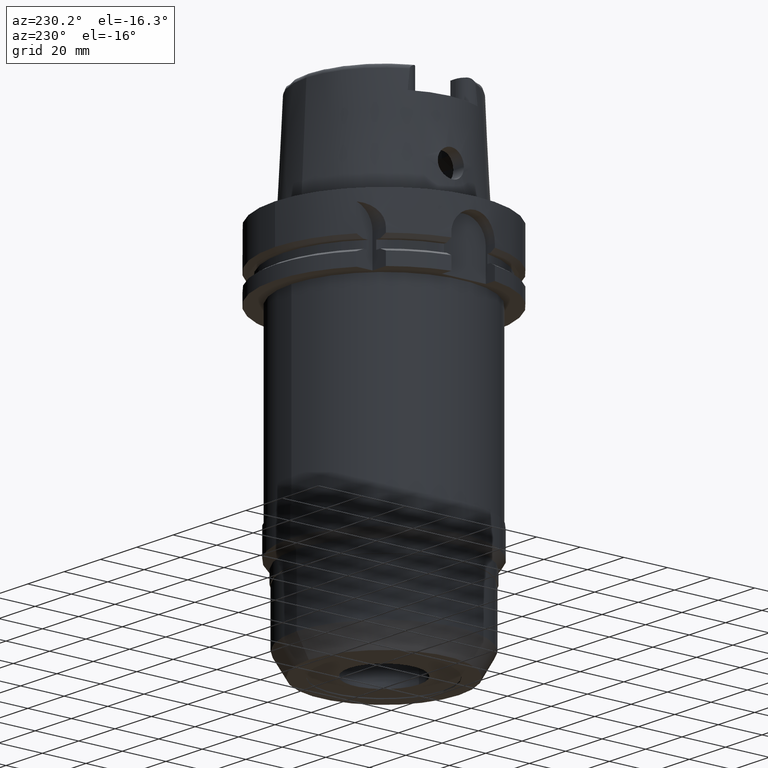
[diagram: clean part render]
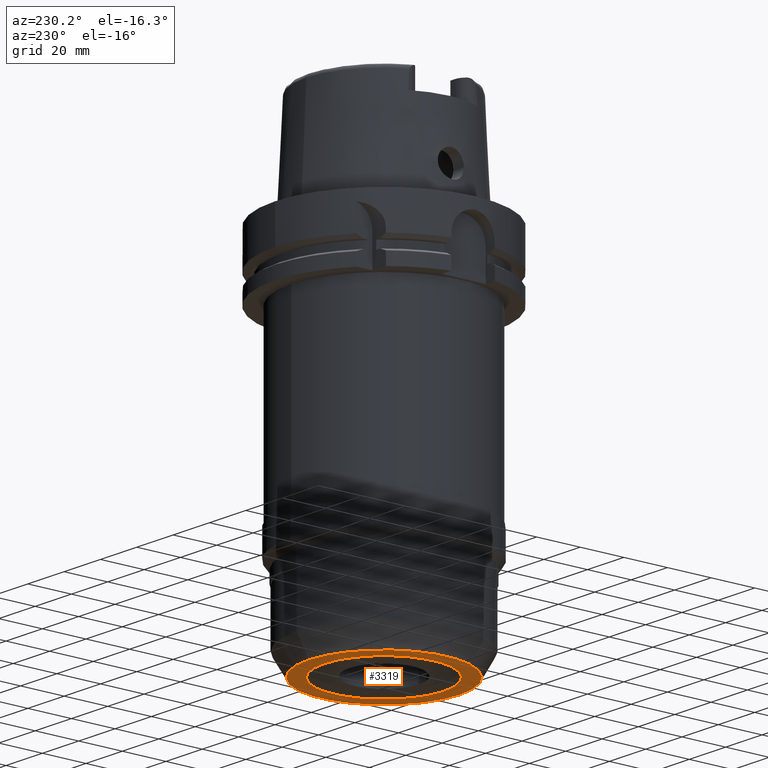
[diagram: same view with one face highlighted and labeled with its STEP entity id]
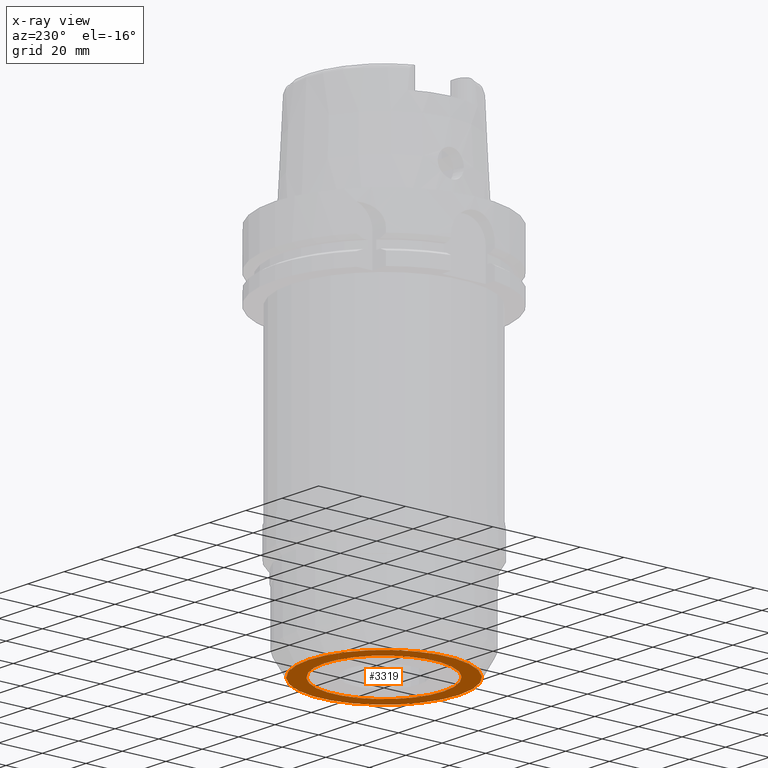
[diagram: x-ray of the same camera — body ghosted, the highlighted face saturated]
A machine part, auxiliary view. The second image highlights one B-rep face of the part: STEP entity #3319.
The next image is the same camera in x-ray: the body ghosted, the highlighted face saturated — about 0% of this face is hidden behind the body in this view.
In plain terms, the highlighted planar face has unit normal (0, 0, 1).
Its self-contained STEP definition (entity closure, byte-faithful):
#1013=CARTESIAN_POINT('',(0.E0,0.E0,-1.654E2));
#1014=DIRECTION('',(0.E0,0.E0,1.E0));
#1015=DIRECTION('',(0.E0,-1.E0,0.E0));
#1016=AXIS2_PLACEMENT_3D('',#1013,#1014,#1015);
#1021=CARTESIAN_POINT('',(0.E0,0.E0,-1.654E2));
#1022=DIRECTION('',(0.E0,0.E0,1.E0));
#1023=DIRECTION('',(0.E0,1.E0,0.E0));
#1024=AXIS2_PLACEMENT_3D('',#1021,#1022,#1023);
#1029=CARTESIAN_POINT('',(0.E0,0.E0,-1.654E2));
#1030=DIRECTION('',(0.E0,0.E0,-1.E0));
#1031=DIRECTION('',(0.E0,-1.E0,0.E0));
#1032=AXIS2_PLACEMENT_3D('',#1029,#1030,#1031);
#1037=CARTESIAN_POINT('',(0.E0,0.E0,-1.654E2));
#1038=DIRECTION('',(0.E0,0.E0,-1.E0));
#1039=DIRECTION('',(0.E0,1.E0,0.E0));
#1040=AXIS2_PLACEMENT_3D('',#1037,#1038,#1039);
#2409=CARTESIAN_POINT('',(0.E0,2.735E1,-1.654E2));
#2410=VERTEX_POINT('',#2409);
#2411=CARTESIAN_POINT('',(0.E0,-2.735E1,-1.654E2));
#2412=VERTEX_POINT('',#2411);
#2413=CARTESIAN_POINT('',(0.E0,-3.451517244270E1,-1.654E2));
#2414=CARTESIAN_POINT('',(0.E0,3.451517244270E1,-1.654E2));
#2415=VERTEX_POINT('',#2413);
#2416=VERTEX_POINT('',#2414);
#3304=CARTESIAN_POINT('',(0.E0,0.E0,-1.654E2));
#3305=DIRECTION('',(0.E0,0.E0,1.E0));
#3306=DIRECTION('',(0.E0,1.E0,0.E0));
#3307=AXIS2_PLACEMENT_3D('',#3304,#3305,#3306);
#3308=PLANE('',#3307);
#3310=ORIENTED_EDGE('',*,*,#3309,.T.);
#3312=ORIENTED_EDGE('',*,*,#3311,.T.);
#3313=EDGE_LOOP('',(#3310,#3312));
#3314=FACE_OUTER_BOUND('',#3313,.F.);
#3315=ORIENTED_EDGE('',*,*,#3297,.T.);
#3316=ORIENTED_EDGE('',*,*,#3286,.T.);
#3317=EDGE_LOOP('',(#3315,#3316));
#3318=FACE_BOUND('',#3317,.F.);
#1017=CIRCLE('',#1016,3.451517244270E1);
#1025=CIRCLE('',#1024,3.451517244270E1);
#1033=CIRCLE('',#1032,2.735E1);
#1041=CIRCLE('',#1040,2.735E1);
#3286=EDGE_CURVE('',#2410,#2412,#1041,.T.);
#3297=EDGE_CURVE('',#2412,#2410,#1033,.T.);
#3309=EDGE_CURVE('',#2415,#2416,#1017,.T.);
#3311=EDGE_CURVE('',#2416,#2415,#1025,.T.);
#3319=ADVANCED_FACE('',(#3314,#3318),#3308,.F.);